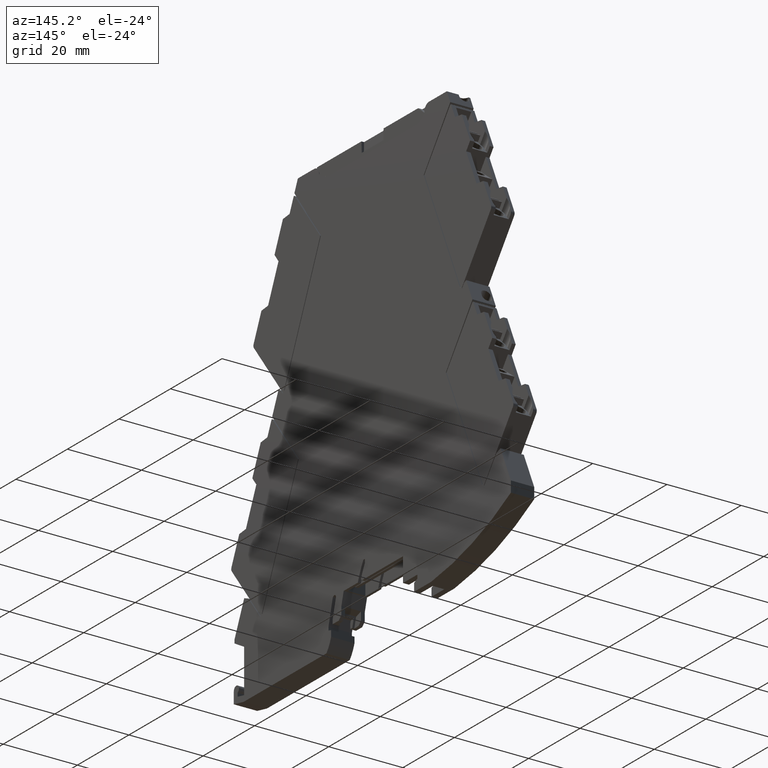
[diagram: clean part render]
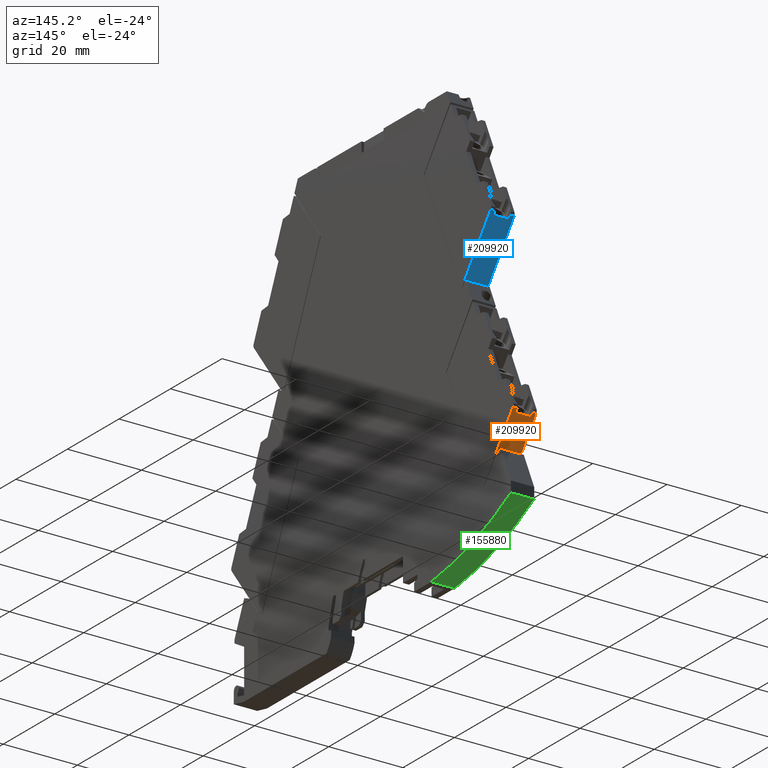
[diagram: same view with three faces highlighted in distinct colors, each labeled with its STEP entity id]
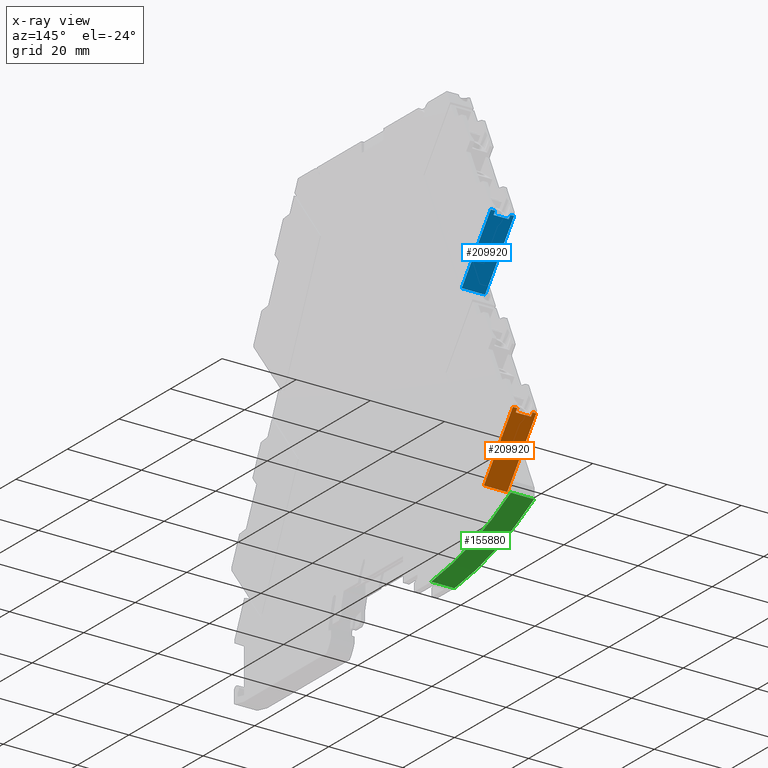
[diagram: x-ray of the same camera — body ghosted, the three highlighted faces saturated]
A machine part, auxiliary view with three faces highlighted in distinct colors.
The next image is the same camera in x-ray (body ghosted, the three faces saturated) — at least one of them is partly hidden behind the body in this view.
Their STEP definitions:

[orange] entity #209920 — the highlighted planar face has unit normal (0, 0.7986, -0.6018).
#208160=CARTESIAN_POINT('',(-162.213817258204,-7.45943924316449,
-15.8499999989814));
#208170=VERTEX_POINT('',#208160);
#208200=CARTESIAN_POINT('',(-2.8421709430404E-14,-8.87505648849543,
-15.8500000153268));
#208210=DIRECTION('',(-0.999961923133656,0.00872652753623987,
1.00760561352886E-10));
#208220=VECTOR('',#208210,1.);
#208230=LINE('',#208200,#208220);
#208240=CARTESIAN_POINT('',(-143.476039707816,-7.62296120132963,
-15.8500000008695));
#208250=VERTEX_POINT('',#208240);
#208260=EDGE_CURVE('',#208250,#208170,#208230,.T.);
#208890=CARTESIAN_POINT('',(-143.476039707302,-7.6229612013239,
-10.7500000016419));
#208900=VERTEX_POINT('',#208890);
#208930=CARTESIAN_POINT('',(-143.476039707816,-7.62296120132964,
-15.8500030008695));
#208940=DIRECTION('',(1.00774453169671E-10,1.12575730689631E-12,1.));
#208950=VECTOR('',#208940,1.);
#208960=LINE('',#208930,#208950);
#208970=CARTESIAN_POINT('',(-143.476039707181,-7.62296120132255,
-9.55000000085919));
#208980=VERTEX_POINT('',#208970);
#208990=EDGE_CURVE('',#208900,#208980,#208960,.T.);
#209300=CARTESIAN_POINT('',(-144.481392963863,-7.61418762437656,
-10.7500000014478));
#209310=VERTEX_POINT('',#209300);
#209340=CARTESIAN_POINT('',(-2.8421709430404E-14,-8.87505648848521,
-10.750000029343));
#209350=DIRECTION('',(0.999961923133656,-0.00872652753623984,
-1.93063584216779E-10));
#209360=VECTOR('',#209350,1.);
#209370=LINE('',#209340,#209360);
#209380=EDGE_CURVE('',#209310,#208900,#209370,.T.);
#209500=CARTESIAN_POINT('',(-154.461784543686,-7.52709014604395,
-15.8500000066468));
#209510=DIRECTION('',(-0.00872652753623987,-0.999961923133656,
-4.08728597543074E-11));
#209520=DIRECTION('',(0.999961923133656,-0.00872652753623987,
-7.49745406018438E-11));
#209530=AXIS2_PLACEMENT_3D('',#209500,#209510,#209520);
#209540=PLANE('',#209530);
#209550=ORIENTED_EDGE('',*,*,#208990,.T.);
#209560=ORIENTED_EDGE('',*,*,#209380,.T.);
#209570=CARTESIAN_POINT('',(-144.481392961706,-7.61418762437382,
1.77635683940025E-15));
#209580=DIRECTION('',(-2.00586524973252E-10,-2.54716825528808E-13,-1.));
#209590=VECTOR('',#209580,1.);
#209600=LINE('',#209570,#209590);
#209610=CARTESIAN_POINT('',(-144.481392964693,-7.61418762437754,
-14.8500000014383));
#209620=VERTEX_POINT('',#209610);
#209630=EDGE_CURVE('',#209310,#209620,#209600,.T.);
#209640=ORIENTED_EDGE('',*,*,#209630,.F.);
#209650=CARTESIAN_POINT('',(-2.8421709430404E-14,-8.87505648849344,
-14.8500000293334));
#209660=DIRECTION('',(-0.999961923133656,0.00872652753623984,
1.93063584216779E-10));
#209670=VECTOR('',#209660,1.);
#209680=LINE('',#209650,#209670);
#209690=CARTESIAN_POINT('',(-143.476039707715,-7.62296120132852,
-14.8500000016324));
#209700=VERTEX_POINT('',#209690);
#209710=EDGE_CURVE('',#209700,#209620,#209680,.T.);
#209720=ORIENTED_EDGE('',*,*,#209710,.T.);
#209730=EDGE_CURVE('',#208250,#209700,#208960,.T.);
#209740=ORIENTED_EDGE('',*,*,#209730,.T.);
#209750=ORIENTED_EDGE('',*,*,#208260,.F.);
#209760=CARTESIAN_POINT('',(-162.213817257774,-7.4594392438161,
1.77635683940025E-15));
#209770=DIRECTION('',(2.709351014082E-11,-4.11108573892267E-11,1.));
#209780=VECTOR('',#209770,1.);
#209790=LINE('',#209760,#209780);
#209800=CARTESIAN_POINT('',(-162.213817258033,-7.45943924342349,
-9.54999999895636));
#209810=VERTEX_POINT('',#209800);
#209820=EDGE_CURVE('',#208170,#209810,#209790,.T.);
#209830=ORIENTED_EDGE('',*,*,#209820,.F.);
#209840=CARTESIAN_POINT('',(-2.8421709430404E-14,-8.87505648875294,
-9.55000001542928));
#209850=DIRECTION('',(0.999961923133656,-0.00872652753623987,
-1.01546791808627E-10));
#209860=VECTOR('',#209850,1.);
#209870=LINE('',#209840,#209860);
#209880=EDGE_CURVE('',#209810,#208980,#209870,.T.);
#209890=ORIENTED_EDGE('',*,*,#209880,.F.);
#209900=EDGE_LOOP('',(#209890,#209830,#209750,#209740,#209720,#209640,
#209560,#209550));
#209910=FACE_OUTER_BOUND('',#209900,.T.);
#209920=ADVANCED_FACE('',(#209910),#209540,.T.);

[blue] entity #209920 — the highlighted planar face has unit normal (0, 0.7986, -0.6018).
#208160=CARTESIAN_POINT('',(-162.213817258204,-7.45943924316449,
-15.8499999989814));
#208170=VERTEX_POINT('',#208160);
#208200=CARTESIAN_POINT('',(-2.8421709430404E-14,-8.87505648849543,
-15.8500000153268));
#208210=DIRECTION('',(-0.999961923133656,0.00872652753623987,
1.00760561352886E-10));
#208220=VECTOR('',#208210,1.);
#208230=LINE('',#208200,#208220);
#208240=CARTESIAN_POINT('',(-143.476039707816,-7.62296120132963,
-15.8500000008695));
#208250=VERTEX_POINT('',#208240);
#208260=EDGE_CURVE('',#208250,#208170,#208230,.T.);
#208890=CARTESIAN_POINT('',(-143.476039707302,-7.6229612013239,
-10.7500000016419));
#208900=VERTEX_POINT('',#208890);
#208930=CARTESIAN_POINT('',(-143.476039707816,-7.62296120132964,
-15.8500030008695));
#208940=DIRECTION('',(1.00774453169671E-10,1.12575730689631E-12,1.));
#208950=VECTOR('',#208940,1.);
#208960=LINE('',#208930,#208950);
#208970=CARTESIAN_POINT('',(-143.476039707181,-7.62296120132255,
-9.55000000085919));
#208980=VERTEX_POINT('',#208970);
#208990=EDGE_CURVE('',#208900,#208980,#208960,.T.);
#209300=CARTESIAN_POINT('',(-144.481392963863,-7.61418762437656,
-10.7500000014478));
#209310=VERTEX_POINT('',#209300);
#209340=CARTESIAN_POINT('',(-2.8421709430404E-14,-8.87505648848521,
-10.750000029343));
#209350=DIRECTION('',(0.999961923133656,-0.00872652753623984,
-1.93063584216779E-10));
#209360=VECTOR('',#209350,1.);
#209370=LINE('',#209340,#209360);
#209380=EDGE_CURVE('',#209310,#208900,#209370,.T.);
#209500=CARTESIAN_POINT('',(-154.461784543686,-7.52709014604395,
-15.8500000066468));
#209510=DIRECTION('',(-0.00872652753623987,-0.999961923133656,
-4.08728597543074E-11));
#209520=DIRECTION('',(0.999961923133656,-0.00872652753623987,
-7.49745406018438E-11));
#209530=AXIS2_PLACEMENT_3D('',#209500,#209510,#209520);
#209540=PLANE('',#209530);
#209550=ORIENTED_EDGE('',*,*,#208990,.T.);
#209560=ORIENTED_EDGE('',*,*,#209380,.T.);
#209570=CARTESIAN_POINT('',(-144.481392961706,-7.61418762437382,
1.77635683940025E-15));
#209580=DIRECTION('',(-2.00586524973252E-10,-2.54716825528808E-13,-1.));
#209590=VECTOR('',#209580,1.);
#209600=LINE('',#209570,#209590);
#209610=CARTESIAN_POINT('',(-144.481392964693,-7.61418762437754,
-14.8500000014383));
#209620=VERTEX_POINT('',#209610);
#209630=EDGE_CURVE('',#209310,#209620,#209600,.T.);
#209640=ORIENTED_EDGE('',*,*,#209630,.F.);
#209650=CARTESIAN_POINT('',(-2.8421709430404E-14,-8.87505648849344,
-14.8500000293334));
#209660=DIRECTION('',(-0.999961923133656,0.00872652753623984,
1.93063584216779E-10));
#209670=VECTOR('',#209660,1.);
#209680=LINE('',#209650,#209670);
#209690=CARTESIAN_POINT('',(-143.476039707715,-7.62296120132852,
-14.8500000016324));
#209700=VERTEX_POINT('',#209690);
#209710=EDGE_CURVE('',#209700,#209620,#209680,.T.);
#209720=ORIENTED_EDGE('',*,*,#209710,.T.);
#209730=EDGE_CURVE('',#208250,#209700,#208960,.T.);
#209740=ORIENTED_EDGE('',*,*,#209730,.T.);
#209750=ORIENTED_EDGE('',*,*,#208260,.F.);
#209760=CARTESIAN_POINT('',(-162.213817257774,-7.4594392438161,
1.77635683940025E-15));
#209770=DIRECTION('',(2.709351014082E-11,-4.11108573892267E-11,1.));
#209780=VECTOR('',#209770,1.);
#209790=LINE('',#209760,#209780);
#209800=CARTESIAN_POINT('',(-162.213817258033,-7.45943924342349,
-9.54999999895636));
#209810=VERTEX_POINT('',#209800);
#209820=EDGE_CURVE('',#208170,#209810,#209790,.T.);
#209830=ORIENTED_EDGE('',*,*,#209820,.F.);
#209840=CARTESIAN_POINT('',(-2.8421709430404E-14,-8.87505648875294,
-9.55000001542928));
#209850=DIRECTION('',(0.999961923133656,-0.00872652753623987,
-1.01546791808627E-10));
#209860=VECTOR('',#209850,1.);
#209870=LINE('',#209840,#209860);
#209880=EDGE_CURVE('',#209810,#208980,#209870,.T.);
#209890=ORIENTED_EDGE('',*,*,#209880,.F.);
#209900=EDGE_LOOP('',(#209890,#209830,#209750,#209740,#209720,#209640,
#209560,#209550));
#209910=FACE_OUTER_BOUND('',#209900,.T.);
#209920=ADVANCED_FACE('',(#209910),#209540,.T.);

[green] entity #155880 — the highlighted cylindrical surface (partial cylindrical patch) has radius 80 mm, axis along (1, -0, -0).
#4520=CARTESIAN_POINT('',(38.8654179275983,-6.49999999999157,
-14.6999999993261));
#4530=VERTEX_POINT('',#4520);
#4560=CARTESIAN_POINT('',(29.5007235919562,72.9500000000084,
-14.6999999994091));
#4570=DIRECTION('',(-8.87912561076062E-12,6.5458857184369E-15,1.));
#4580=DIRECTION('',(1.,1.11022302459215E-16,8.87912561076062E-12));
#4590=AXIS2_PLACEMENT_3D('',#4560,#4570,#4580);
#4600=CIRCLE('',#4590,80.0000000000001);
#4610=CARTESIAN_POINT('',(69.7507235919569,3.81290792925414,
-14.699999999052));
#4620=VERTEX_POINT('',#4610);
#4630=EDGE_CURVE('',#4530,#4620,#4600,.T.);
#9740=CARTESIAN_POINT('',(69.750723591901,3.81290792925418,
-8.39999999932436));
#9750=VERTEX_POINT('',#9740);
#9780=CARTESIAN_POINT('',(29.5007235919003,72.9500000000085,
-8.3999999996822));
#9790=DIRECTION('',(-8.87912561076062E-12,6.5458857184369E-15,1.));
#9800=DIRECTION('',(1.,1.11022302459215E-16,8.87912561076062E-12));
#9810=AXIS2_PLACEMENT_3D('',#9780,#9790,#9800);
#9820=CIRCLE('',#9810,80.0000000000001);
#9830=CARTESIAN_POINT('',(38.8654179275423,-6.49999999999153,
-8.39999999959853));
#9840=VERTEX_POINT('',#9830);
#9850=EDGE_CURVE('',#9840,#9750,#9820,.T.);
#135500=CARTESIAN_POINT('',(69.750723591901,3.81290792925418,
-8.39999999932436));
#135510=DIRECTION('',(-8.87912561076062E-12,6.5458857184369E-15,1.));
#135520=VECTOR('',#135510,1.);
#135530=LINE('',#135500,#135520);
#135540=EDGE_CURVE('',#4620,#9750,#135530,.T.);
#154860=CARTESIAN_POINT('',(38.8654179275423,-6.49999999999153,
-8.39999999959853));
#154870=DIRECTION('',(8.87912561076062E-12,-6.5458857184369E-15,-1.));
#154880=VECTOR('',#154870,1.);
#154890=LINE('',#154860,#154880);
#154900=EDGE_CURVE('',#9840,#4530,#154890,.T.);
#155770=CARTESIAN_POINT('',(29.5007235919003,72.9500000000085,
-8.3999999996822));
#155780=DIRECTION('',(-8.87912561076062E-12,6.5458857184369E-15,1.));
#155790=DIRECTION('',(1.,1.11022302459215E-16,8.87912561076062E-12));
#155800=AXIS2_PLACEMENT_3D('',#155770,#155780,#155790);
#155810=CYLINDRICAL_SURFACE('',#155800,80.0000000000001);
#155820=ORIENTED_EDGE('',*,*,#9850,.F.);
#155830=ORIENTED_EDGE('',*,*,#135540,.T.);
#155840=ORIENTED_EDGE('',*,*,#4630,.T.);
#155850=ORIENTED_EDGE('',*,*,#154900,.T.);
#155860=EDGE_LOOP('',(#155850,#155840,#155830,#155820));
#155870=FACE_OUTER_BOUND('',#155860,.T.);
#155880=ADVANCED_FACE('',(#155870),#155810,.T.);